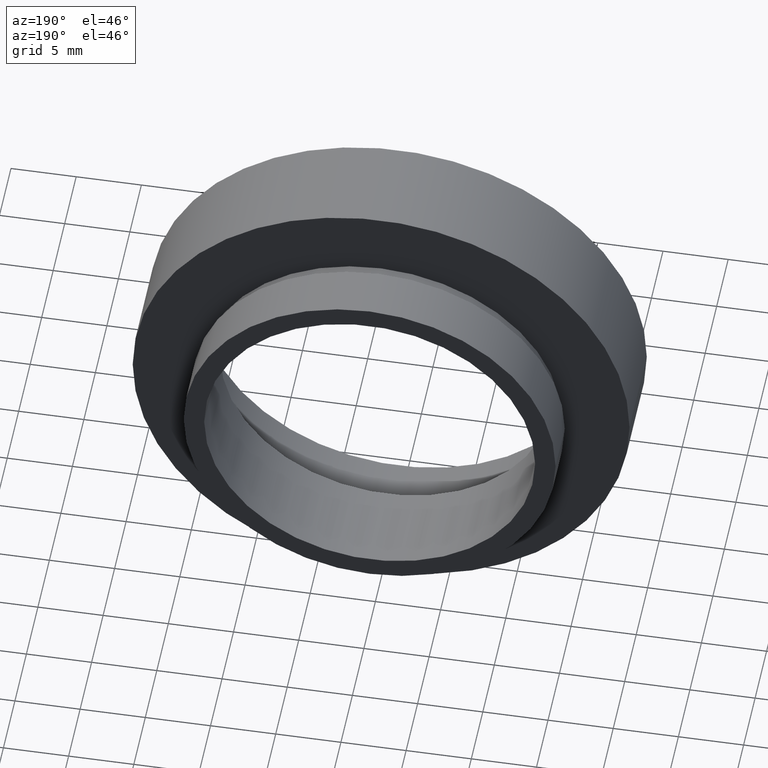
[diagram: clean part render]
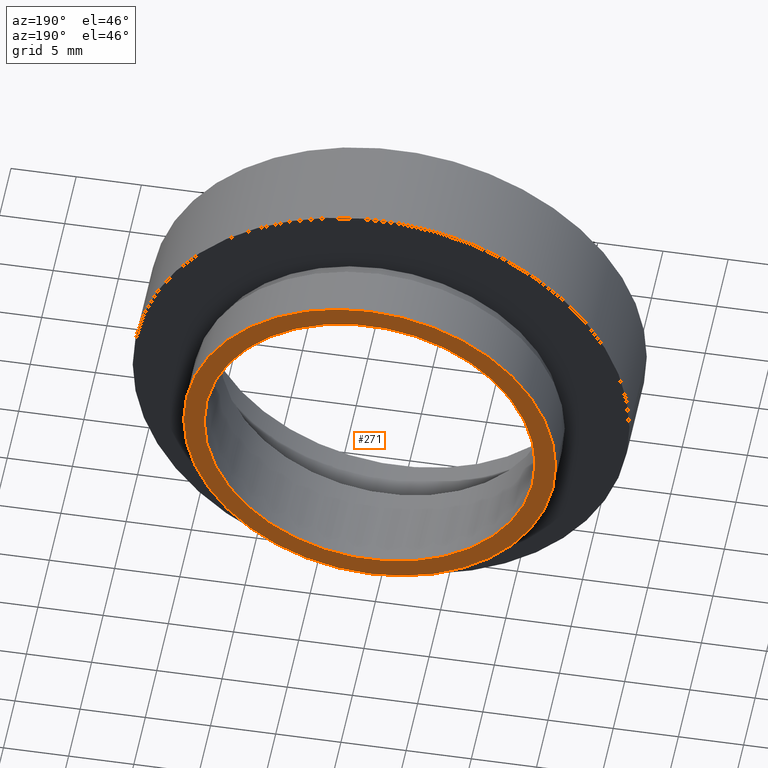
[diagram: same view with one face highlighted and labeled with its STEP entity id]
A machine part, auxiliary view. The second image highlights one B-rep face of the part: STEP entity #271.
In plain terms, the highlighted planar face has unit normal (0, -1, 0).
Its self-contained STEP definition (entity closure, byte-faithful):
#2 = DIRECTION ( 'NONE',  ( 1.000000000000000000, 1.224646799147351000E-016, 0.0000000000000000000 ) ) ;
#7 = EDGE_CURVE ( 'NONE', #541, #36, #599, .T. ) ;
#36 = VERTEX_POINT ( 'NONE', #229 ) ;
#42 = CARTESIAN_POINT ( 'NONE',  ( -12.69000000000000000, 12.49999999999999500, 0.0000000000000000000 ) ) ;
#81 = AXIS2_PLACEMENT_3D ( 'NONE', #529, #485, #243 ) ;
#124 = VERTEX_POINT ( 'NONE', #563 ) ;
#148 = CARTESIAN_POINT ( 'NONE',  ( 5.371323195044474300E-016, 12.49999999999999600, 0.0000000000000000000 ) ) ;
#151 = CIRCLE ( 'NONE', #522, 12.69000000000000000 ) ;
#170 = CARTESIAN_POINT ( 'NONE',  ( 5.371323195044474300E-016, 12.49999999999999600, 0.0000000000000000000 ) ) ;
#196 = CARTESIAN_POINT ( 'NONE',  ( 12.69000000000000000, 12.50000000000000000, 0.0000000000000000000 ) ) ;
#198 = AXIS2_PLACEMENT_3D ( 'NONE', #321, #556, #410 ) ;
#229 = CARTESIAN_POINT ( 'NONE',  ( 14.26000000000000200, 12.50000000000000000, 1.746346335584125800E-015 ) ) ;
#243 = DIRECTION ( 'NONE',  ( -1.000000000000000000, -1.216496126210944500E-016, 0.0000000000000000000 ) ) ;
#264 = ORIENTED_EDGE ( 'NONE', *, *, #597, .F. ) ;
#269 = DIRECTION ( 'NONE',  ( -1.000000000000000000, -1.367000375080226200E-016, 0.0000000000000000000 ) ) ;
#271 = ADVANCED_FACE ( 'NONE', ( #566, #500 ), #288, .F. ) ;
#277 = EDGE_CURVE ( 'NONE', #36, #541, #441, .T. ) ;
#279 = AXIS2_PLACEMENT_3D ( 'NONE', #196, #383, #2 ) ;
#288 = PLANE ( 'NONE',  #279 ) ;
#292 = DIRECTION ( 'NONE',  ( -1.224646799147351000E-016, 1.000000000000000000, -0.0000000000000000000 ) ) ;
#311 = EDGE_LOOP ( 'NONE', ( #516, #264 ) ) ;
#321 = CARTESIAN_POINT ( 'NONE',  ( 5.371323195044472300E-016, 12.49999999999999800, 0.0000000000000000000 ) ) ;
#334 = DIRECTION ( 'NONE',  ( -1.000000000000000000, -1.367000375080226200E-016, 0.0000000000000000000 ) ) ;
#383 = DIRECTION ( 'NONE',  ( 1.224646799147351000E-016, -1.000000000000000000, 0.0000000000000000000 ) ) ;
#410 = DIRECTION ( 'NONE',  ( -1.000000000000000000, -1.216496126210944500E-016, 0.0000000000000000000 ) ) ;
#420 = EDGE_CURVE ( 'NONE', #619, #124, #596, .T. ) ;
#441 = CIRCLE ( 'NONE', #81, 14.26000000000000200 ) ;
#485 = DIRECTION ( 'NONE',  ( -1.224646799147351000E-016, 1.000000000000000000, -0.0000000000000000000 ) ) ;
#498 = DIRECTION ( 'NONE',  ( -1.224646799147351000E-016, 1.000000000000000000, -0.0000000000000000000 ) ) ;
#500 = FACE_OUTER_BOUND ( 'NONE', #531, .T. ) ;
#516 = ORIENTED_EDGE ( 'NONE', *, *, #420, .F. ) ;
#522 = AXIS2_PLACEMENT_3D ( 'NONE', #148, #292, #334 ) ;
#529 = CARTESIAN_POINT ( 'NONE',  ( 5.371323195044472300E-016, 12.49999999999999800, 0.0000000000000000000 ) ) ;
#531 = EDGE_LOOP ( 'NONE', ( #606, #558 ) ) ;
#536 = AXIS2_PLACEMENT_3D ( 'NONE', #170, #498, #269 ) ;
#541 = VERTEX_POINT ( 'NONE', #598 ) ;
#556 = DIRECTION ( 'NONE',  ( -1.224646799147351000E-016, 1.000000000000000000, -0.0000000000000000000 ) ) ;
#558 = ORIENTED_EDGE ( 'NONE', *, *, #277, .T. ) ;
#563 = CARTESIAN_POINT ( 'NONE',  ( 12.69000000000000000, 12.49999999999999800, 1.554076788117991100E-015 ) ) ;
#566 = FACE_BOUND ( 'NONE', #311, .T. ) ;
#596 = CIRCLE ( 'NONE', #536, 12.69000000000000000 ) ;
#597 = EDGE_CURVE ( 'NONE', #124, #619, #151, .T. ) ;
#598 = CARTESIAN_POINT ( 'NONE',  ( -14.26000000000000200, 12.49999999999999600, 0.0000000000000000000 ) ) ;
#599 = CIRCLE ( 'NONE', #198, 14.26000000000000200 ) ;
#606 = ORIENTED_EDGE ( 'NONE', *, *, #7, .T. ) ;
#619 = VERTEX_POINT ( 'NONE', #42 ) ;